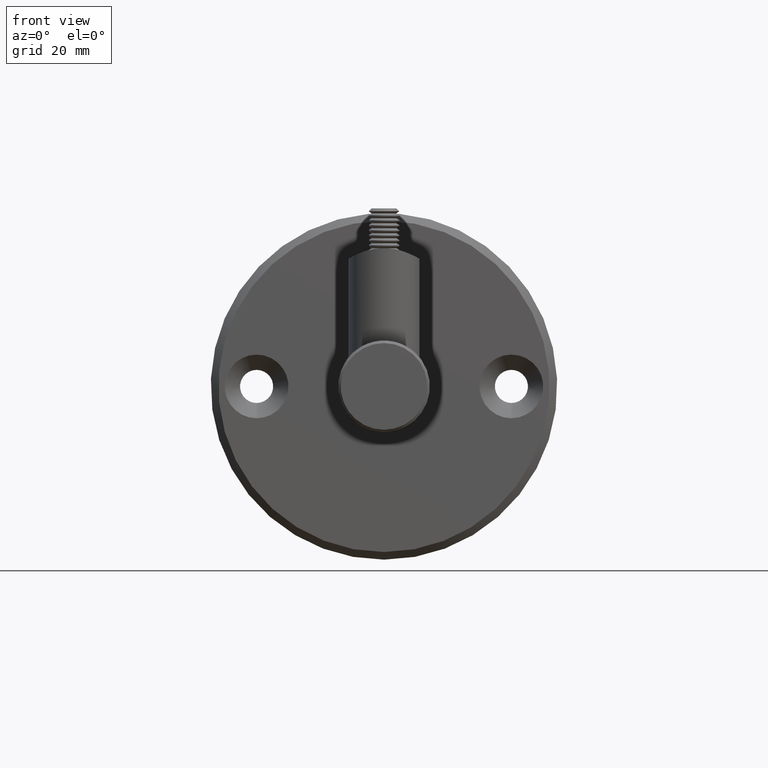
[diagram: clean part render]
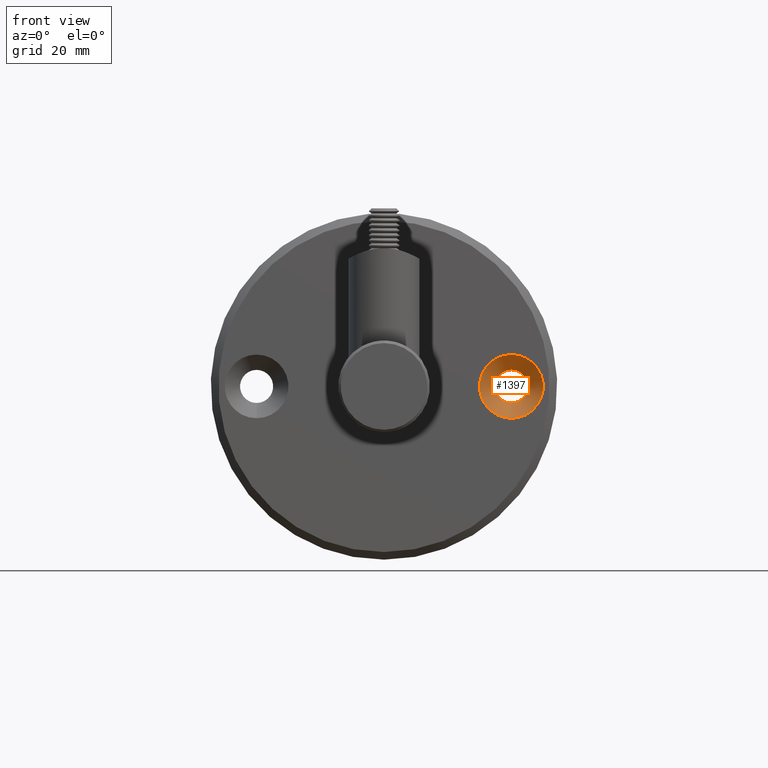
[diagram: same view with one face highlighted and labeled with its STEP entity id]
A machine part, front view. The second image highlights one B-rep face of the part: STEP entity #1397.
In plain terms, the highlighted conical surface has half-angle 45 deg.
Its self-contained STEP definition (entity closure, byte-faithful):
#1213 = DIRECTION ( 'NONE',  ( 1.000000000000000000, 0.0000000000000000000, 0.0000000000000000000 ) ) ;
#1275 = EDGE_CURVE ( 'NONE', #16024, #16024, #18428, .T. ) ;
#1397 = ADVANCED_FACE ( 'NONE', ( #10712, #5885 ), #2445, .F. ) ;
#2261 = EDGE_LOOP ( 'NONE', ( #3930 ) ) ;
#2445 = CONICAL_SURFACE ( 'NONE', #9837, 6.250000000000000000, 0.7853981633974489500 ) ;
#2741 = VERTEX_POINT ( 'NONE', #8910 ) ;
#3414 = EDGE_LOOP ( 'NONE', ( #6651 ) ) ;
#3930 = ORIENTED_EDGE ( 'NONE', *, *, #9273, .F. ) ;
#5885 = FACE_OUTER_BOUND ( 'NONE', #3414, .T. ) ;
#6651 = ORIENTED_EDGE ( 'NONE', *, *, #1275, .T. ) ;
#7263 = DIRECTION ( 'NONE',  ( 1.000000000000000000, 0.0000000000000000000, 0.0000000000000000000 ) ) ;
#7769 = DIRECTION ( 'NONE',  ( -0.0000000000000000000, -0.0000000000000000000, 1.000000000000000000 ) ) ;
#8910 = CARTESIAN_POINT ( 'NONE',  ( 3.250000000000006200, 25.00000000000000000, -1.199999999999995300 ) ) ;
#9273 = EDGE_CURVE ( 'NONE', #2741, #2741, #15691, .T. ) ;
#9837 = AXIS2_PLACEMENT_3D ( 'NONE', #14757, #11980, #10582 ) ;
#10582 = DIRECTION ( 'NONE',  ( 1.000000000000000000, 0.0000000000000000000, 0.0000000000000000000 ) ) ;
#10712 = FACE_BOUND ( 'NONE', #2261, .T. ) ;
#11980 = DIRECTION ( 'NONE',  ( -0.0000000000000000000, -0.0000000000000000000, 1.000000000000000000 ) ) ;
#13152 = CARTESIAN_POINT ( 'NONE',  ( 6.250000000000006200, 25.00000000000000000, 1.800000000000000300 ) ) ;
#14489 = CARTESIAN_POINT ( 'NONE',  ( 5.640276577966111500E-015, 25.00000000000000000, 1.800000000000000300 ) ) ;
#14757 = CARTESIAN_POINT ( 'NONE',  ( 5.640276577966111500E-015, 25.00000000000000000, 1.800000000000000300 ) ) ;
#15691 = CIRCLE ( 'NONE', #16918, 3.250000000000000900 ) ;
#15906 = DIRECTION ( 'NONE',  ( -0.0000000000000000000, -0.0000000000000000000, 1.000000000000000000 ) ) ;
#16024 = VERTEX_POINT ( 'NONE', #13152 ) ;
#16918 = AXIS2_PLACEMENT_3D ( 'NONE', #17112, #15906, #1213 ) ;
#17112 = CARTESIAN_POINT ( 'NONE',  ( 5.640276577966111500E-015, 25.00000000000000000, -1.199999999999995300 ) ) ;
#17972 = AXIS2_PLACEMENT_3D ( 'NONE', #14489, #7769, #7263 ) ;
#18428 = CIRCLE ( 'NONE', #17972, 6.250000000000000000 ) ;